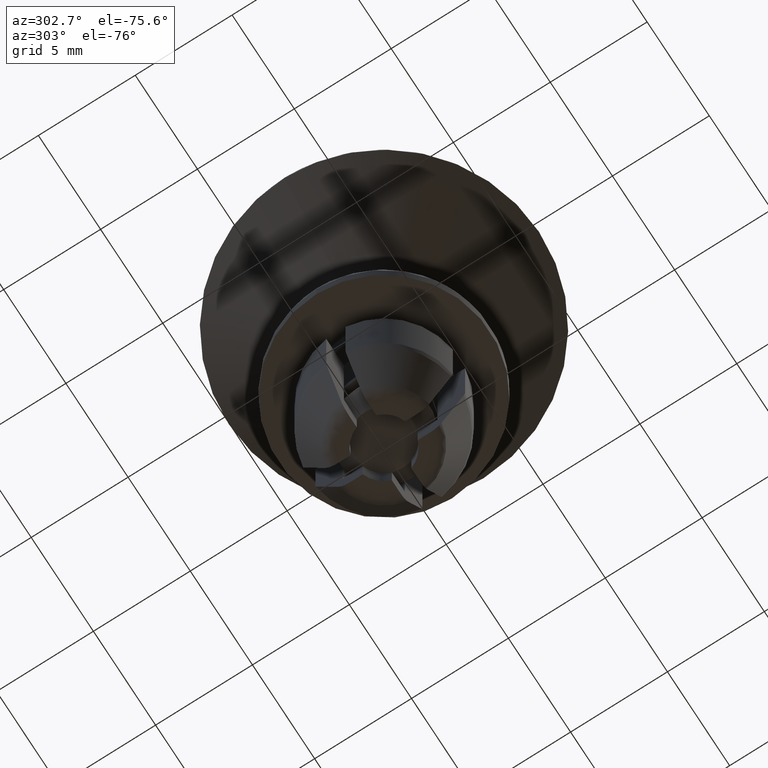
[diagram: clean part render]
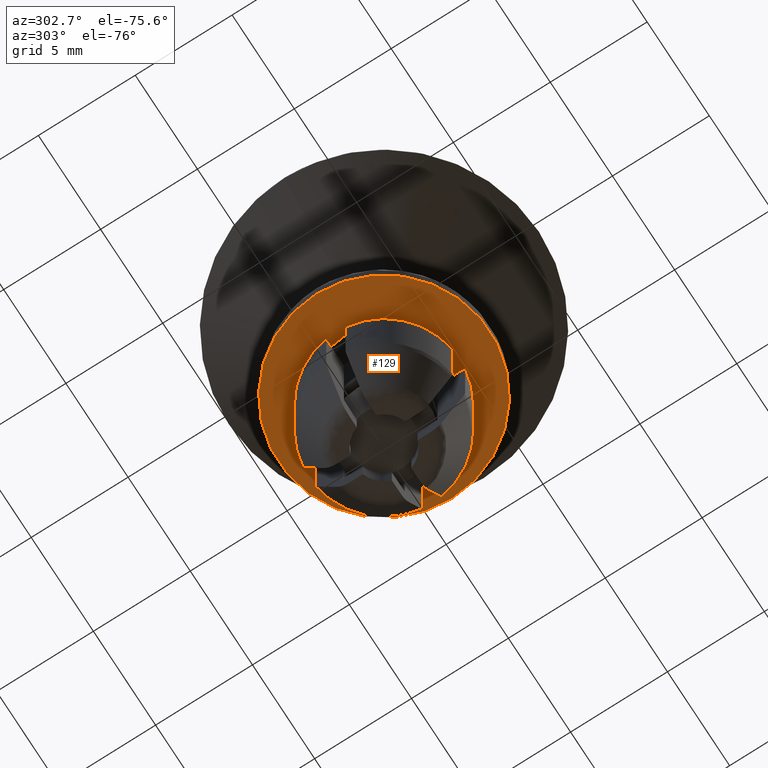
[diagram: same view with one face highlighted and labeled with its STEP entity id]
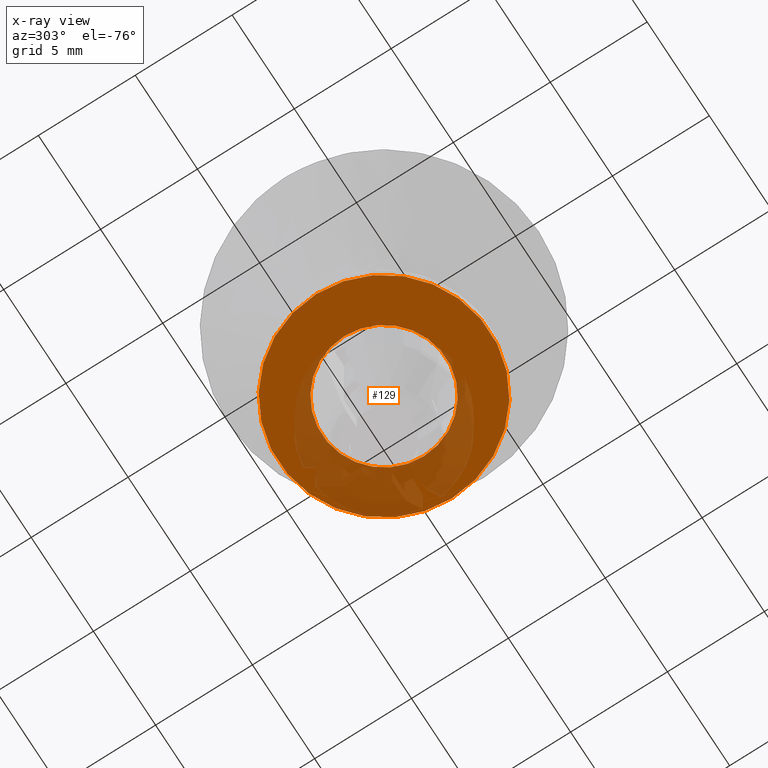
[diagram: x-ray of the same camera — body ghosted, the highlighted face saturated]
A machine part, auxiliary view. The second image highlights one B-rep face of the part: STEP entity #129.
The next image is the same camera in x-ray: the body ghosted, the highlighted face saturated — about 33% of this face is hidden behind the body in this view.
In plain terms, the highlighted planar face has unit normal (0, 0, -1).
Its self-contained STEP definition (entity closure, byte-faithful):
#129=ADVANCED_FACE('',(#365,#366),#364,.T.);
#364=PLANE('',#1113);
#365=FACE_OUTER_BOUND('',#1114,.T.);
#366=FACE_BOUND('',#1115,.T.);
#1110=CARTESIAN_POINT('',(1.25350000000E+01,-1.13276122815E+01,-2.00000000000E+00));
#1111=DIRECTION('',(0.00000000000E+00,0.00000000000E+00,-1.00000000000E+00));
#1112=DIRECTION('',(-1.00000000000E+00,0.00000000000E+00,0.00000000000E+00));
#1113=AXIS2_PLACEMENT_3D('',#1110,#1111,#1112);
#1114=EDGE_LOOP('',(#1754,#1755));
#1115=EDGE_LOOP('',(#1756,#1757));
#1754=ORIENTED_EDGE('',*,*,#2135,.T.);
#1755=ORIENTED_EDGE('',*,*,#2136,.T.);
#1756=ORIENTED_EDGE('',*,*,#2137,.F.);
#1757=ORIENTED_EDGE('',*,*,#2138,.F.);
#2135=EDGE_CURVE('',#2817,#2818,#2819,.T.);
#2136=EDGE_CURVE('',#2818,#2817,#2825,.T.);
#2137=EDGE_CURVE('',#2831,#2832,#2833,.T.);
#2138=EDGE_CURVE('',#2832,#2831,#2839,.T.);
#2817=VERTEX_POINT('',#3946);
#2818=VERTEX_POINT('',#3947);
#2819=CIRCLE('',#3951,5.45000000000E+00);
#2825=CIRCLE('',#3955,5.45000000000E+00);
#2831=VERTEX_POINT('',#3956);
#2832=VERTEX_POINT('',#3957);
#2833=CIRCLE('',#3961,3.20000000000E+00);
#2839=CIRCLE('',#3965,3.20000000000E+00);
#3946=CARTESIAN_POINT('',(-5.45000000000E+00,0.00000000000E+00,-2.00000000000E+00));
#3947=CARTESIAN_POINT('',(5.45000000000E+00,2.96059473233E-16,-2.00000000000E+00));
#3948=CARTESIAN_POINT('',(0.00000000000E+00,0.00000000000E+00,-2.00000000000E+00));
#3949=DIRECTION('',(-0.00000000000E+00,0.00000000000E+00,-1.00000000000E+00));
#3950=DIRECTION('',(-1.00000000000E+00,-1.22460635382E-16,0.00000000000E+00));
#3951=AXIS2_PLACEMENT_3D('',#3948,#3949,#3950);
#3952=CARTESIAN_POINT('',(0.00000000000E+00,0.00000000000E+00,-2.00000000000E+00));
#3953=DIRECTION('',(-0.00000000000E+00,0.00000000000E+00,-1.00000000000E+00));
#3954=DIRECTION('',(-1.00000000000E+00,-1.22460635382E-16,0.00000000000E+00));
#3955=AXIS2_PLACEMENT_3D('',#3952,#3953,#3954);
#3956=CARTESIAN_POINT('',(3.20000000000E+00,1.48029736617E-16,-2.00000000000E+00));
#3957=CARTESIAN_POINT('',(-3.20000000000E+00,0.00000000000E+00,-2.00000000000E+00));
#3958=CARTESIAN_POINT('',(0.00000000000E+00,0.00000000000E+00,-2.00000000000E+00));
#3959=DIRECTION('',(-0.00000000000E+00,0.00000000000E+00,-1.00000000000E+00));
#3960=DIRECTION('',(-1.00000000000E+00,-1.22460635382E-16,0.00000000000E+00));
#3961=AXIS2_PLACEMENT_3D('',#3958,#3959,#3960);
#3962=CARTESIAN_POINT('',(0.00000000000E+00,0.00000000000E+00,-2.00000000000E+00));
#3963=DIRECTION('',(-0.00000000000E+00,0.00000000000E+00,-1.00000000000E+00));
#3964=DIRECTION('',(-1.00000000000E+00,-1.22460635382E-16,0.00000000000E+00));
#3965=AXIS2_PLACEMENT_3D('',#3962,#3963,#3964);